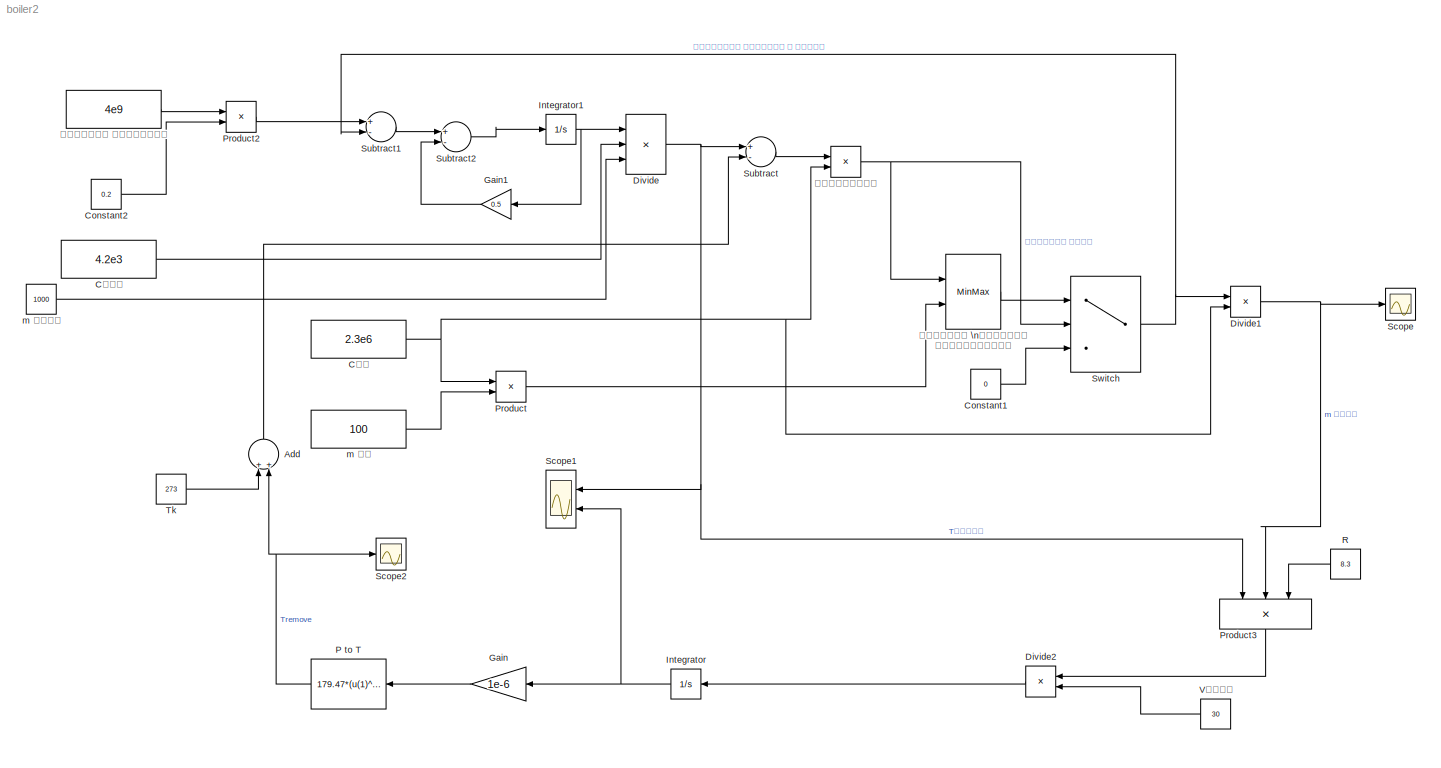
MODEL boiler2
KIND model
BLOCK [Sum] Add
  InputSameDT = off
  OutDataTypeStr = Inherit: Inherit via internal rule
  Ports = [2, 1]
  SID = 35
  SaturateOnIntegerOverflow = off
BLOCK [Constant] Constant1
  SID = 22
  Value = 0
BLOCK [Constant] Constant2
  SID = 25
  Value = 0.2
BLOCK [Constant] Cêîò
  SID = 7
  Value = 4.2e3
BLOCK [Constant] Cïð
  SID = 3
  Value = 2.3e6
BLOCK [Product] Divide
  InputSameDT = off
  Inputs = */*
  OutDataTypeStr = Inherit: Inherit via internal rule
  Ports = [3, 1]
  RndMeth = Floor
  SID = 9
  SaturateOnIntegerOverflow = off
BLOCK [Product] Divide1
  InputSameDT = off
  Inputs = */
  OutDataTypeStr = Inherit: Inherit via internal rule
  Ports = [2, 1]
  RndMeth = Floor
  SID = 14
  SaturateOnIntegerOverflow = off
BLOCK [Product] Divide2
  InputSameDT = off
  Inputs = */
  OutDataTypeStr = Inherit: Inherit via internal rule
  Ports = [2, 1]
  RndMeth = Floor
  SID = 29
  SaturateOnIntegerOverflow = off
BLOCK [Gain] Gain
  Gain = 1e-6
  OutDataTypeStr = Inherit: Inherit via internal rule
  ParamDataTypeStr = Inherit: Inherit via internal rule
  SID = 34
  SaturateOnIntegerOverflow = off
BLOCK [Gain] Gain1
  Gain = 0.5
  OutDataTypeStr = Inherit: Inherit via internal rule
  ParamDataTypeStr = Inherit: Inherit via internal rule
  SID = 38
  SaturateOnIntegerOverflow = off
BLOCK [Integrator] Integrator
  InitialCondition = 100000
  Ports = [1, 1]
  SID = 33
BLOCK [Integrator] Integrator1
  InitialCondition = 300*4.2e6
  Ports = [1, 1]
  SID = 37
BLOCK [Fcn] P to T
  Expr = 179.47*(u(1)^0.2391)
  SID = 26
BLOCK [Product] Product
  InputSameDT = off
  OutDataTypeStr = Inherit: Inherit via internal rule
  Ports = [2, 1]
  SID = 5
  SaturateOnIntegerOverflow = off
BLOCK [Product] Product2
  InputSameDT = off
  OutDataTypeStr = Inherit: Inherit via internal rule
  Ports = [2, 1]
  SID = 24
  SaturateOnIntegerOverflow = off
BLOCK [Product] Product3
  InputSameDT = off
  Inputs = 3
  OutDataTypeStr = Inherit: Inherit via internal rule
  Ports = [3, 1]
  SID = 30
  SaturateOnIntegerOverflow = off
BLOCK [Constant] R
  SID = 28
  Value = 8.3
BLOCK [Scope] Scope
  DataFormat = StructureWithTime
  Floating = off
  NumInputPorts = 1
  Ports = [1]
  SID = 15
  SampleTime = 0
  YMax = 1.25e-007
  YMin = 0
BLOCK [Scope] Scope1
  DataFormat = StructureWithTime
  Floating = off
  NumInputPorts = 2
  Ports = [2]
  SID = 17
  SampleTime = 0
  SaveName = ScopeData1
  YMax = 5~5
  YMin = -5~-5
BLOCK [Scope] Scope2
  DataFormat = StructureWithTime
  Floating = off
  NumInputPorts = 1
  Ports = [1]
  SID = 32
  SampleTime = 0
  SaveName = ScopeData2
  YMax = 0.47
  YMin = 0.4525
BLOCK [Sum] Subtract
  InputSameDT = off
  Inputs = +-
  OutDataTypeStr = Inherit: Inherit via internal rule
  Ports = [2, 1]
  SID = 10
  SaturateOnIntegerOverflow = off
BLOCK [Sum] Subtract1
  InputSameDT = off
  Inputs = +-
  OutDataTypeStr = Inherit: Inherit via internal rule
  Ports = [2, 1]
  SID = 16
  SaturateOnIntegerOverflow = off
BLOCK [Sum] Subtract2
  InputSameDT = off
  Inputs = +-
  OutDataTypeStr = Inherit: Inherit via internal rule
  Ports = [2, 1]
  SID = 36
  SaturateOnIntegerOverflow = off
BLOCK [Switch] Switch
  Criteria = u2 > Threshold
  InputSameDT = off
  SID = 21
  SaturateOnIntegerOverflow = off
BLOCK [Constant] Tk
  SID = 8
  Value = 273
BLOCK [Constant] Vêîòë
  SID = 27
  Value = 30
BLOCK [Constant] m âîäû
  SID = 39
  Value = 1000
BLOCK [Constant] m ïð
  SID = 4
  Value = 100
BLOCK [Product] èñïàðåíèå
  InputSameDT = off
  OutDataTypeStr = Inherit: Inherit via internal rule
  Ports = [2, 1]
  SID = 13
  SaturateOnIntegerOverflow = off
BLOCK [MinMax] ïîòîëîê \nïðîèçâîäèòåëüíîñòè
  Function = min
  InputSameDT = off
  Inputs = 2
  Ports = [2, 1]
  SID = 6
  SaturateOnIntegerOverflow = off
BLOCK [Constant] òåïëîòà ñãîðàíèÿ
  SID = 1
  Value = 4e9
LINE Add:1 -> Subtract:2
LINE Constant1:1 -> Switch:3
LINE Constant2:1 -> Product2:2
LINE Cêîò:1 -> Divide:2
NET Cïð:1 -> Divide1:2, Product:1, èñïàðåíèå:2
NET Divide1:1 -> Product3:2, Scope:1
LINE Divide2:1 -> Integrator:1
NET Divide:1 -> Product3:1, Scope1:1, Subtract:1
LINE Gain1:1 -> Subtract2:2
LINE Gain:1 -> P to T:1
NET Integrator1:1 -> Divide:1, Gain1:1
NET Integrator:1 -> Gain:1, Scope1:2
NET P to T:1 -> Add:2, Scope2:1
LINE Product2:1 -> Subtract1:1
LINE Product3:1 -> Divide2:1
LINE Product:1 -> ïîòîëîê \nïðîèçâîäèòåëüíîñòè:2
LINE R:1 -> Product3:3
LINE Subtract1:1 -> Subtract2:1
LINE Subtract2:1 -> Integrator1:1
LINE Subtract:1 -> èñïàðåíèå:1
NET Switch:1 -> Divide1:1, Subtract1:2
LINE Tk:1 -> Add:1
LINE Vêîòë:1 -> Divide2:2
LINE m âîäû:1 -> Divide:3
LINE m ïð:1 -> Product:2
NET èñïàðåíèå:1 -> Switch:2, ïîòîëîê \nïðîèçâîäèòåëüíîñòè:1
LINE ïîòîëîê \nïðîèçâîäèòåëüíîñòè:1 -> Switch:1
LINE òåïëîòà ñãîðàíèÿ:1 -> Product2:1
note: NET lines group one-source signal fan-out (src -> all destinations, sorted); 1:1 wires keep LINE
